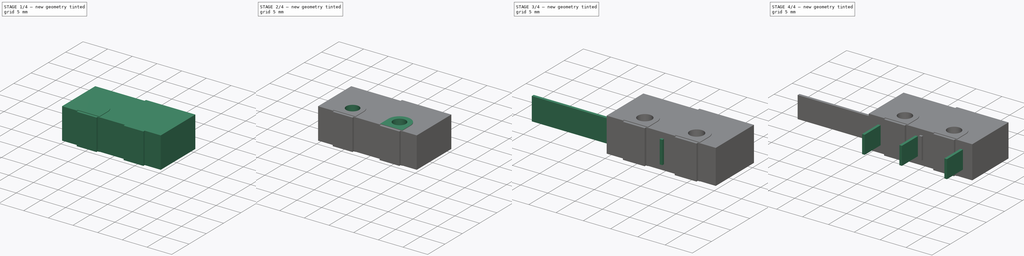
[diagram: build sequence overview — one tinted view per stage of 4, left to right]
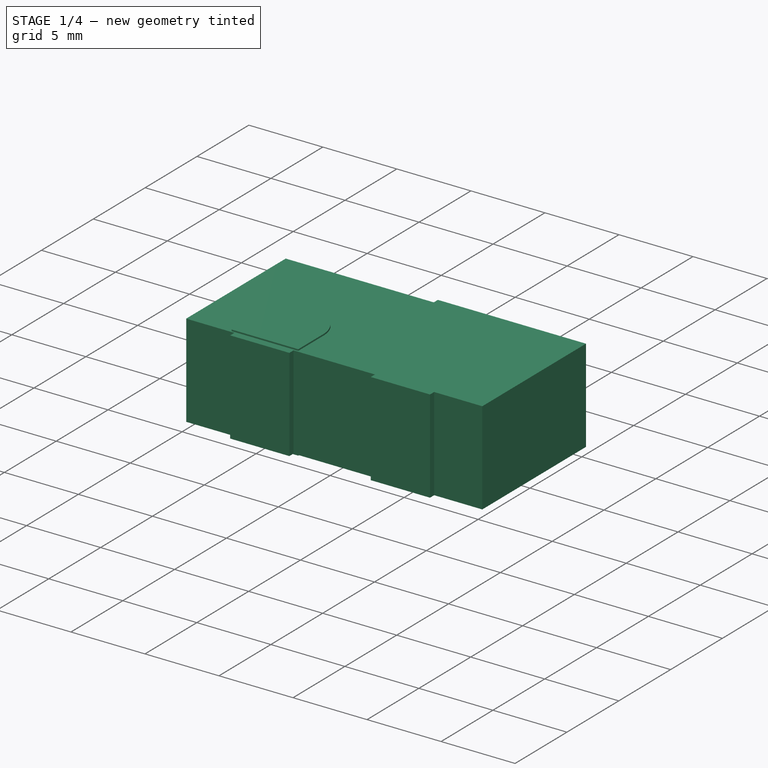
[diagram: stage 1 of 4 — iso view after this stage's code; geometry added in this stage tinted green]
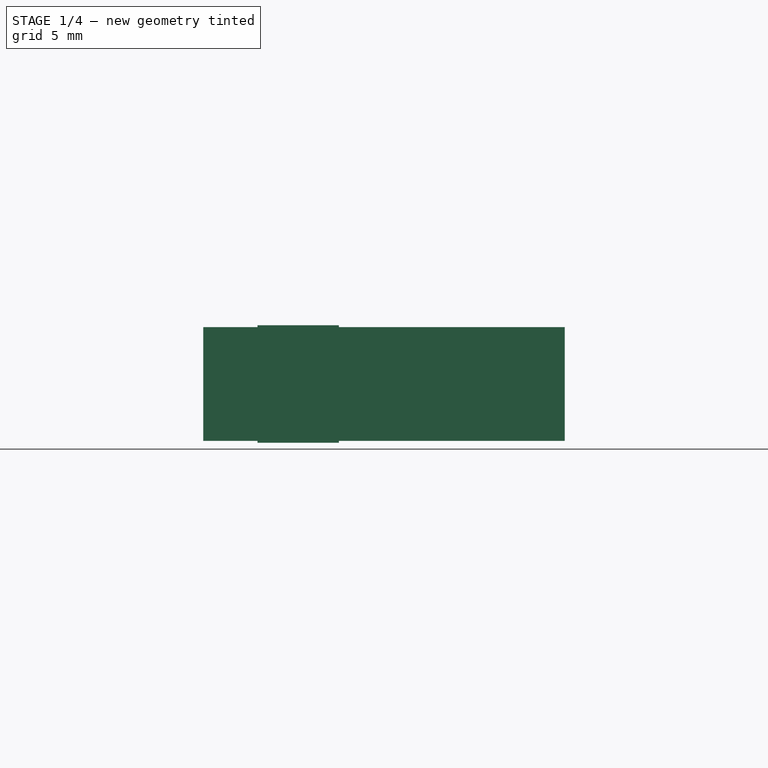
[diagram: stage 1 of 4 — front view after this stage's code; geometry added in this stage tinted green]
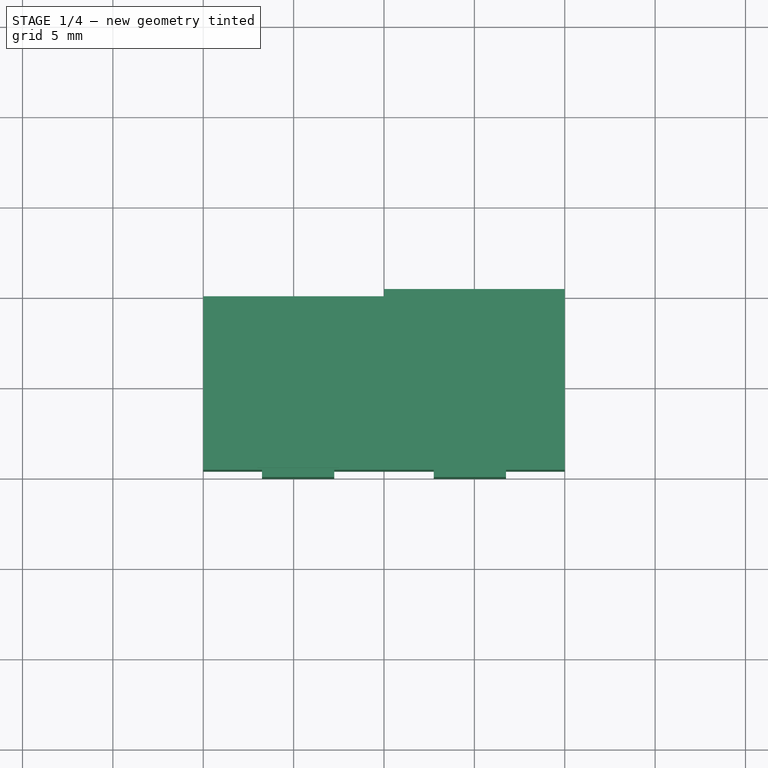
[diagram: stage 1 of 4 — top view after this stage's code; geometry added in this stage tinted green]
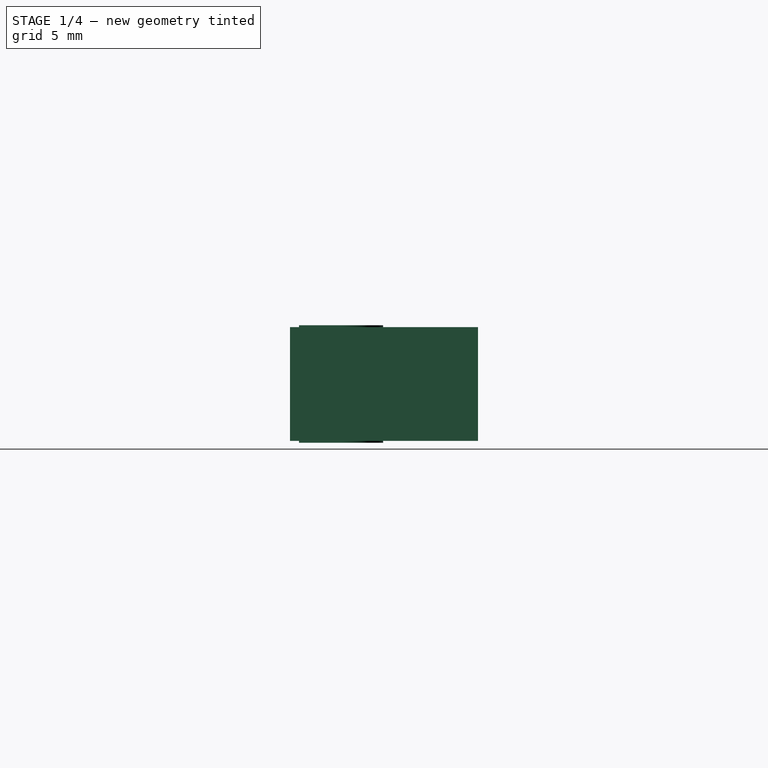
[diagram: stage 1 of 4 — right view after this stage's code; geometry added in this stage tinted green]
FCSTD DOCUMENT  (FreeCAD 1.0R39109 (Git))
Label: KW-12
License: All rights reserved
LicenseURL: http://en.wikipedia.org/wiki/All_rights_reserved
objects: Sketcher::SketchObject×6, PartDesign::Body×6, PartDesign::Pad×5, PartDesign::Mirrored×2, PartDesign::FeatureBase×2, PartDesign::Pocket×1, App::Part×1
note: 44 computed .brp shape members not serialized (recipe doc carries the construction recipe); baked Part::Feature solids carry a one-line shape summary decoded from their .brp

FEATURE [Sketcher::SketchObject] Sketch
  ArcFitTolerance = 1e-06
  AttachmentSupport = -> [XY_Plane]
  FullyConstrained = true
  MakeInternals = false
  MapMode = 5
  sketch-geometry (16):
    g0: LineSegment StartX=10 StartY=0.4 StartZ=0 EndX=10 EndY=10.4 EndZ=0
    g1: LineSegment StartX=-10 StartY=10 StartZ=0 EndX=-10 EndY=0.4 EndZ=0
    g2: LineSegment StartX=10 StartY=10.4 StartZ=0 EndX=-1.2008e-12 EndY=10.4 EndZ=0
    g3: LineSegment StartX=-1.2011e-12 StartY=10.4 StartZ=0 EndX=-1.2011e-12 EndY=10 EndZ=0
    g4: LineSegment StartX=-1.2011e-12 StartY=10 StartZ=0 EndX=-10 EndY=10 EndZ=0
    g5: LineSegment StartX=-10 StartY=0.4 StartZ=0 EndX=-6.75 EndY=0.4 EndZ=0
    g6: LineSegment StartX=-6.75 StartY=0.4 StartZ=0 EndX=-6.75 EndY=1.2024e-12 EndZ=0
    g7: LineSegment StartX=-6.75 StartY=1.2024e-12 StartZ=0 EndX=-2.75 EndY=1.2024e-12 EndZ=0
    g8: LineSegment StartX=-2.75 StartY=1.2024e-12 StartZ=0 EndX=-2.75 EndY=0.4 EndZ=0
    g9: LineSegment StartX=-2.75 StartY=0.4 StartZ=0 EndX=2.75 EndY=0.4 EndZ=0
    g10: LineSegment StartX=2.75 StartY=0.4 StartZ=0 EndX=2.75 EndY=-1.2024e-12 EndZ=0
    g11: LineSegment StartX=2.75 StartY=-1.2024e-12 StartZ=0 EndX=6.75 EndY=-1.2024e-12 EndZ=0
    g12: LineSegment StartX=6.75 StartY=-1.2024e-12 StartZ=0 EndX=6.75 EndY=0.4 EndZ=0
    g13: LineSegment StartX=6.75 StartY=0.4 StartZ=0 EndX=10 EndY=0.4 EndZ=0
    g14: GeomPoint X=-4.75 Y=1.2024e-12 Z=0
    g15: GeomPoint X=-4.75 Y=2.9 Z=0
  constraints (44):
    c: Vertical(g0)
    c: Vertical(g1)
    c: Coincident(g2,g0)
    c: Horizontal(g2)
    c: Coincident(g3,g2)
    c: Vertical(g3)
    c: Coincident(g4,g1)
    c: Horizontal(g4)
    c: Coincident(g3,g4)
    c: DistanceX(g2,g2) = 10
    c: Coincident(g5,g1)
    c: Coincident(g5,g6)
    c: Coincident(g6,g7)
    c: Horizontal(g7)
    c: Coincident(g7,g8)
    c: Vertical(g8)
    c: Coincident(g8,g9)
    c: Coincident(g9,g10)
    c: Vertical(g10)
    c: Coincident(g10,g11)
    c: Horizontal(g11)
    c: Coincident(g11,g12)
    c: Vertical(g12)
    c: Coincident(g12,g13)
    c: Coincident(g13,g0)
    c: Horizontal(g13)
    c: Equal(g11,g7)
    c: Vertical(g6)
    c: DistanceX(g7,g7) = 4
    c: Equal(g10,g8)
    c: Horizontal(g5)
    c: DistanceY(g1,g1) = 9.6
    c: Horizontal(g9)
    c: Horizontal(g9,g12)
    c: Horizontal(g5,g8)
    c: DistanceX(g1,g0) = 20
    c: Equal(g5,g13)
    c: Symmetric(g7,g10,g-1)
    c: Symmetric(g7,g6,g14)
    c: DistanceX(g14,g-1) = 4.75
    c: DistanceY(g-1,g0) = 10.4
    c: DistanceY(g-1,g15) = 2.9
    c: DistanceX(g15,g-1) = 4.75
    c: DistanceY(g5,g15) = 2.5
FEATURE [PartDesign::Pad] Pad
  Direction = (0,0,1)
  Length = 6.3
  Length2 = 10
  Midplane = true
  Profile = -> Sketch
  ReferenceAxis = -> Sketch [N_Axis]
  Refine = true
  Suppressed = false
  Type = 0
FEATURE [Sketcher::SketchObject] Sketch001
  ArcFitTolerance = 1e-06
  AttachmentSupport = -> [XY_Plane]
  FullyConstrained = true
  MakeInternals = false
  MapMode = 5
  sketch-geometry (4):
    g0: LineSegment StartX=-2.5 StartY=2.9 StartZ=0 EndX=-2.5 EndY=0.5 EndZ=0
    g1: LineSegment StartX=-2.5 StartY=0.5 StartZ=0 EndX=-7 EndY=0.5 EndZ=0
    g2: LineSegment StartX=-7 StartY=0.5 StartZ=0 EndX=-7 EndY=2.9 EndZ=0
    g3: ArcOfCircle CenterX=-4.75 CenterY=2.9 CenterZ=0 NormalX=0 NormalY=0 NormalZ=1 AngleXU=0 Radius=2.25 StartAngle=8.70301e-11 EndAngle=3.14159
  constraints (12):
    c: Coincident(g0,g1)
    c: Horizontal(g1)
    c: Coincident(g1,g2)
    c: Vertical(g2)
    c: Tangent(g2,g3) = 1.5708
    c: Coincident(g3,g0)
    c: Vertical(g0)
    c: Horizontal(g0,g2)
    c: Radius(g3) = 2.25
    c: DistanceX(g3,g-1) = 4.75
    c: DistanceY(g-1,g0) = 0.5
    c: DistanceY(g-1,g2) = 2.9
FEATURE [PartDesign::Pad] Pad001
  BaseFeature = -> Pad
  Direction = (0,0,1)
  Length = 6.5
  Length2 = 10
  Midplane = true
  Profile = -> Sketch001
  ReferenceAxis = -> Sketch001 [N_Axis]
  Refine = true
  Suppressed = false
  Type = 0
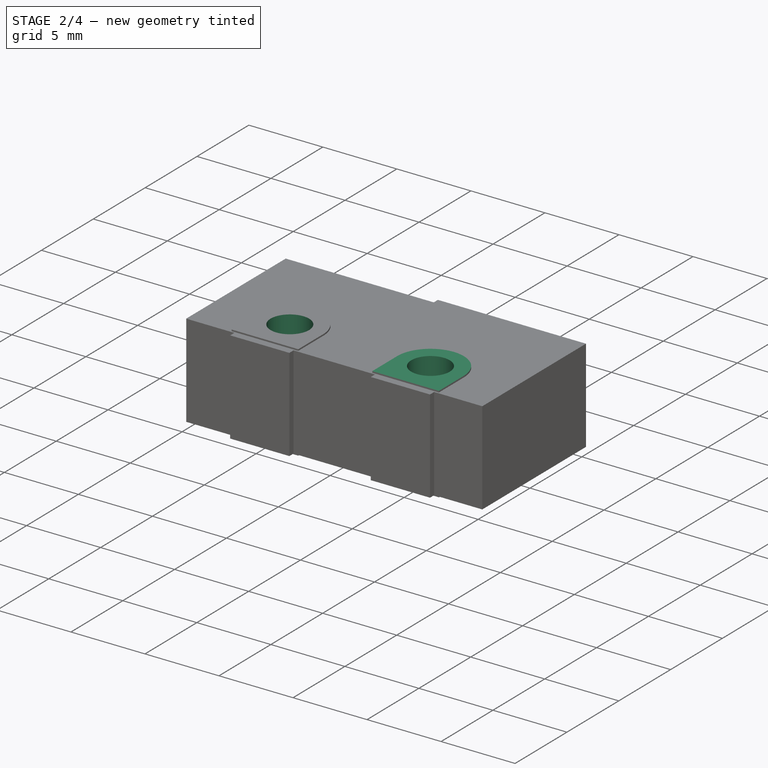
[diagram: stage 2 of 4 — iso view after this stage's code; geometry added in this stage tinted green]
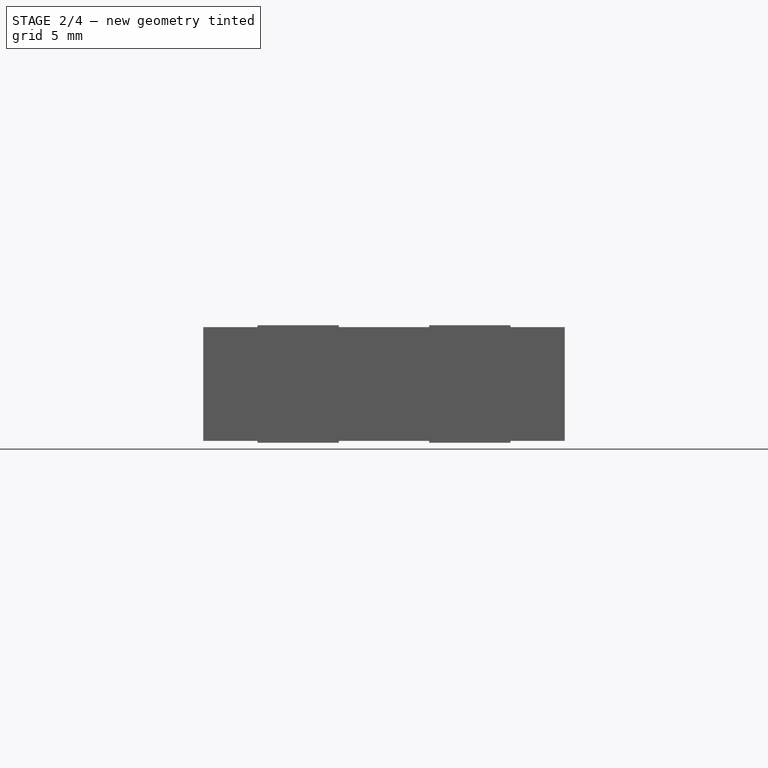
[diagram: stage 2 of 4 — front view after this stage's code; geometry added in this stage tinted green]
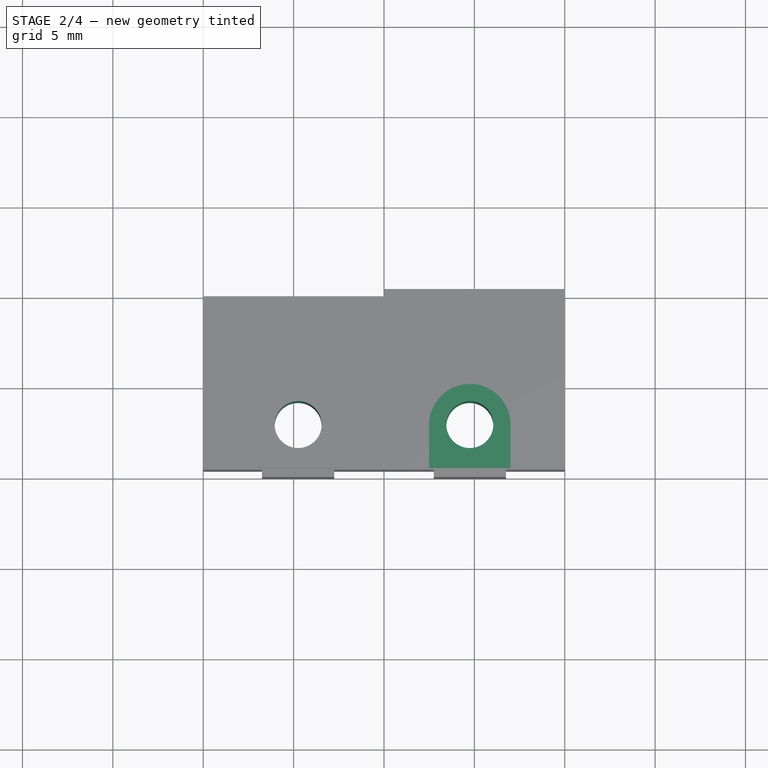
[diagram: stage 2 of 4 — top view after this stage's code; geometry added in this stage tinted green]
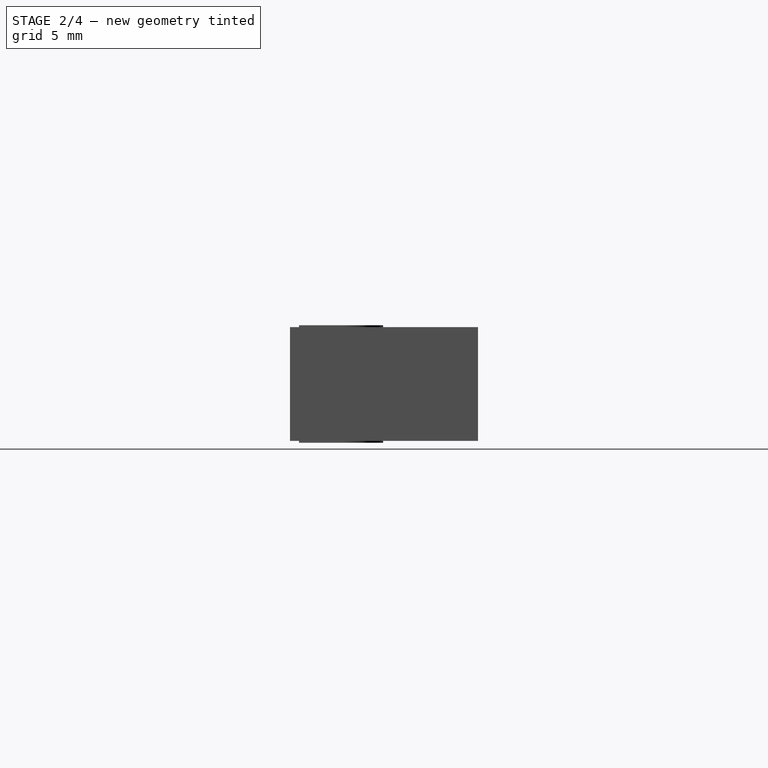
[diagram: stage 2 of 4 — right view after this stage's code; geometry added in this stage tinted green]
FEATURE [PartDesign::Mirrored] Mirrored
  BaseFeature = -> Pad001
  MirrorPlane = -> Sketch001 [V_Axis]
  Originals = -> [Pad001]
  Refine = true
  Suppressed = false
  TransformMode = 0
FEATURE [Sketcher::SketchObject] Sketch002
  ArcFitTolerance = 1e-06
  AttachmentSupport = -> [XY_Plane]
  FullyConstrained = true
  MakeInternals = false
  MapMode = 5
  sketch-geometry (1):
    g0: Circle CenterX=-4.75 CenterY=2.9 CenterZ=0 NormalX=0 NormalY=0 NormalZ=1 AngleXU=0 Radius=1.3
  constraints (3):
    c: DistanceY(g-1,g0) = 2.9
    c: DistanceX(g0,g-1) = 4.75
    c: Diameter(g0) = 2.6
FEATURE [PartDesign::Pocket] Pocket
  BaseFeature = -> Mirrored
  Direction = (0,0,-1)
  Length = 5
  Length2 = 5
  Midplane = true
  Profile = -> Sketch002
  ReferenceAxis = -> Sketch002 [N_Axis]
  Refine = true
  Suppressed = false
  Type = 1
FEATURE [PartDesign::Body] Body005  label="SwitchLever25mm-Depressed"
  AllowCompound = false
  Group = -> [Clone001]
  Origin = -> Origin006
  Placement = pos=(6.5,9.5,0) rot=(0,0,-1;6.2221rad)
  Tip = -> Clone001
FEATURE [PartDesign::Mirrored] Mirrored001
  BaseFeature = -> Pocket
  MirrorPlane = -> Sketch002 [V_Axis]
  Originals = -> [Pocket]
  Refine = true
  Suppressed = false
  TransformMode = 0
FEATURE [PartDesign::Body] Body  label="Housing"
  AllowCompound = false
  Group = -> [Sketch,Pad,Sketch001,Pad001,Mirrored,Sketch002,Pocket,Mirrored001]
  Origin = -> Origin
  Tip = -> Mirrored001
FEATURE [App::Part] Part  label="KW-12-25mm"
  Group = -> [Body,Body001,Body002,Body003,Body004,Body005]
  Origin = -> Origin002
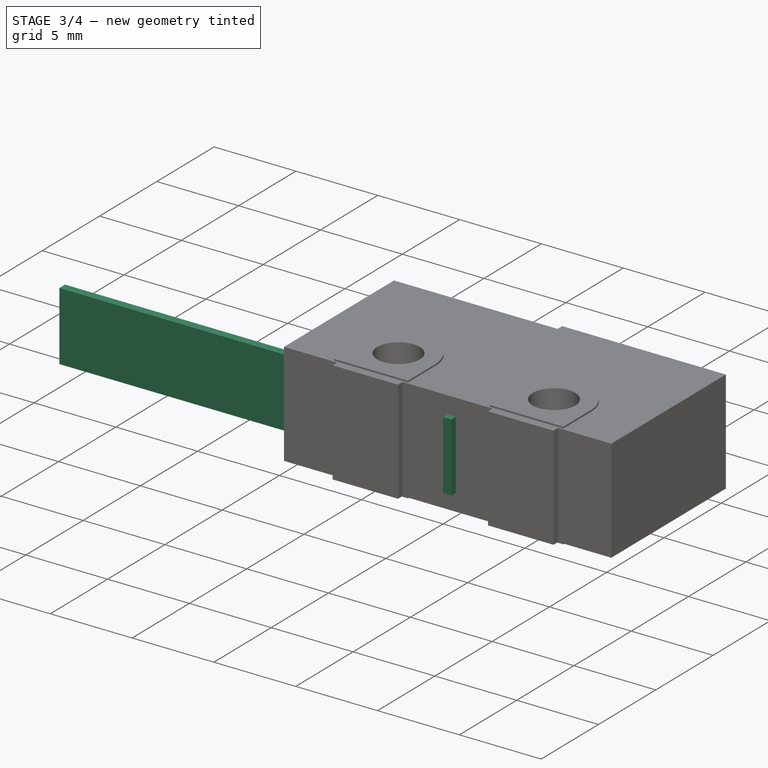
[diagram: stage 3 of 4 — iso view after this stage's code; geometry added in this stage tinted green]
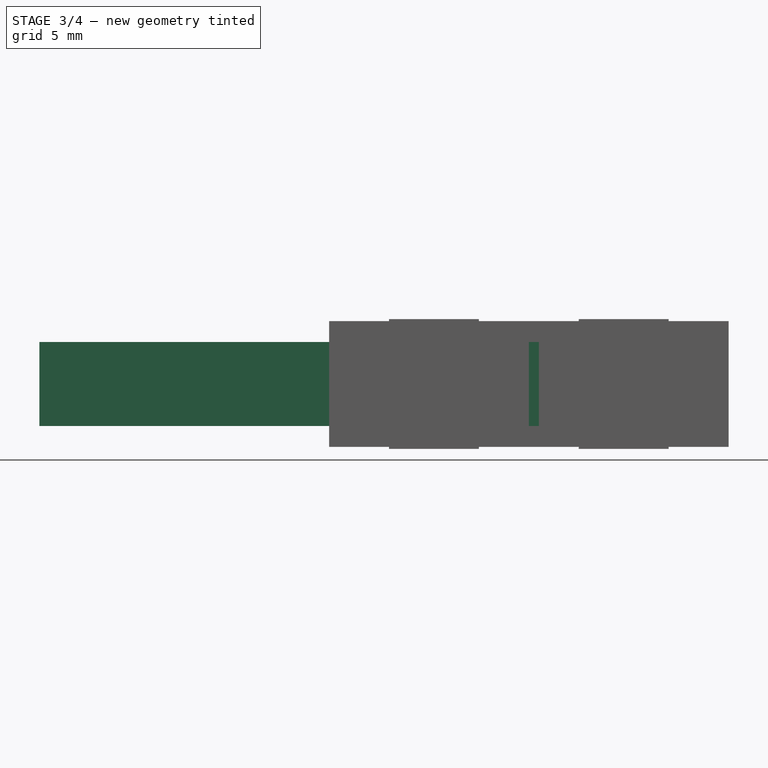
[diagram: stage 3 of 4 — front view after this stage's code; geometry added in this stage tinted green]
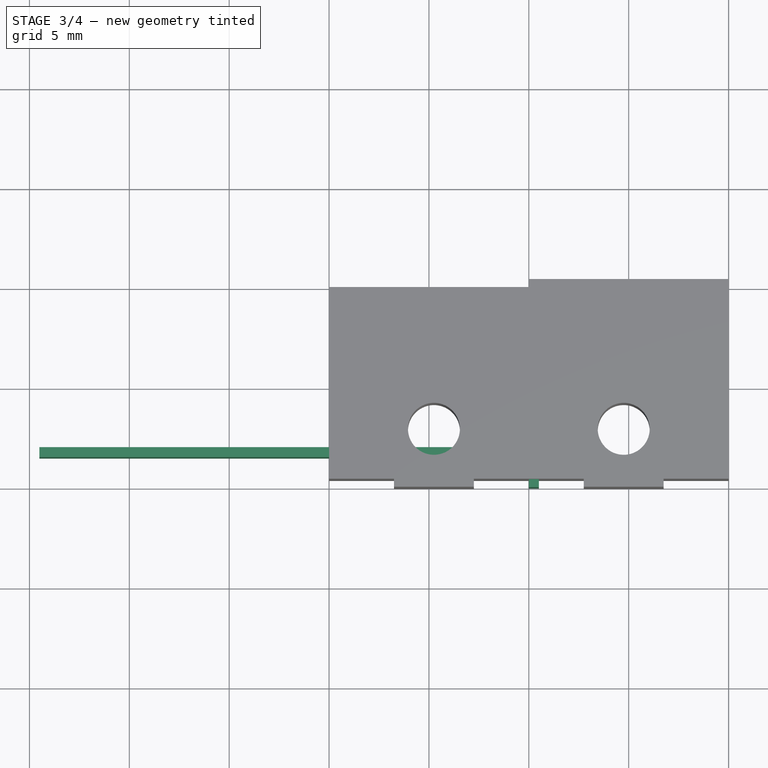
[diagram: stage 3 of 4 — top view after this stage's code; geometry added in this stage tinted green]
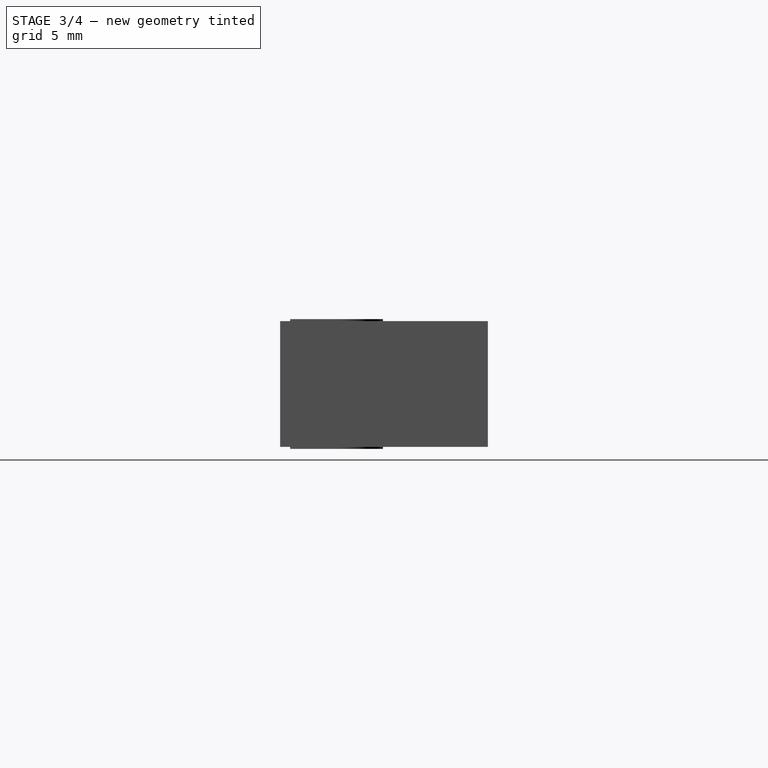
[diagram: stage 3 of 4 — right view after this stage's code; geometry added in this stage tinted green]
FEATURE [PartDesign::Body] Body002  label="Legs"
  AllowCompound = false
  Group = -> [Sketch004,Pad003]
  Origin = -> Origin003
  Tip = -> Pad003
FEATURE [Sketcher::SketchObject] Sketch005
  ArcFitTolerance = 1e-06
  AttachmentSupport = -> [XY_Plane004]
  FullyConstrained = true
  MakeInternals = false
  MapMode = 5
  sketch-geometry (6):
    g0: LineSegment StartX=0 StartY=0 StartZ=0 EndX=0 EndY=1.5 EndZ=0
    g1: LineSegment StartX=0 StartY=1.5 StartZ=0 EndX=-24.5 EndY=1.5 EndZ=0
    g2: LineSegment StartX=-24.5 StartY=1.5 StartZ=0 EndX=-24.5 EndY=2 EndZ=0
    g3: LineSegment StartX=-24.5 StartY=2 StartZ=0 EndX=0.5 EndY=2 EndZ=0
    g4: LineSegment StartX=0.5 StartY=2 StartZ=0 EndX=0.5 EndY=0 EndZ=0
    g5: LineSegment StartX=0.5 StartY=0 StartZ=0 EndX=0 EndY=0 EndZ=0
  constraints (17):
    c: Coincident(g-1,g0)
    c: PointOnObject(g0,g-2)
    c: Coincident(g0,g1)
    c: Horizontal(g1)
    c: Coincident(g1,g2)
    c: Coincident(g2,g3)
    c: Horizontal(g3)
    c: Coincident(g3,g4)
    c: PointOnObject(g4,g-1)
    c: Vertical(g4)
    c: Coincident(g4,g5)
    c: Coincident(g5,g0)
    c: Vertical(g2)
    c: DistanceY(g2,g2) = 0.5
    c: DistanceX(g3,g3) = 25
    c: DistanceX(g0,g3) = 0.5
    c: DistanceY(g4,g4) = 2
FEATURE [PartDesign::Pad] Pad004
  Direction = (0,0,1)
  Length = 4.2
  Length2 = 10
  Midplane = true
  Profile = -> Sketch005
  ReferenceAxis = -> Sketch005 [N_Axis]
  Refine = true
  Suppressed = false
  Type = 0
FEATURE [PartDesign::Body] Body003  label="SwitchLever25mm-Trigger"
  AllowCompound = false
  Group = -> [Sketch005,Pad004]
  Origin = -> Origin004
  Placement = pos=(6.5,9.5,0) rot=(0,0,1;0rad)
  Tip = -> Pad004
FEATURE [PartDesign::FeatureBase] Clone
  BaseFeature = -> Body003
  Suppressed = false
FEATURE [PartDesign::Body] Body004  label="SwitchLever25mm-Neutral"
  AllowCompound = false
  Group = -> [Clone]
  Origin = -> Origin005
  Placement = pos=(6.5,9.5,0) rot=(0,0,1;6.02139rad)
  Tip = -> Clone
FEATURE [PartDesign::FeatureBase] Clone001
  BaseFeature = -> Body003
  Suppressed = false
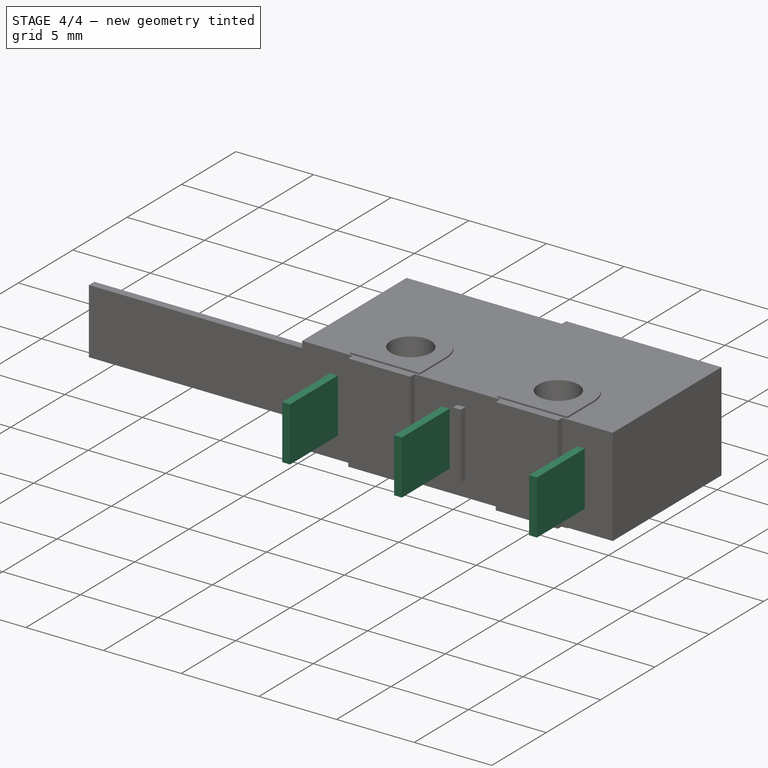
[diagram: stage 4 of 4 — iso view after this stage's code; geometry added in this stage tinted green]
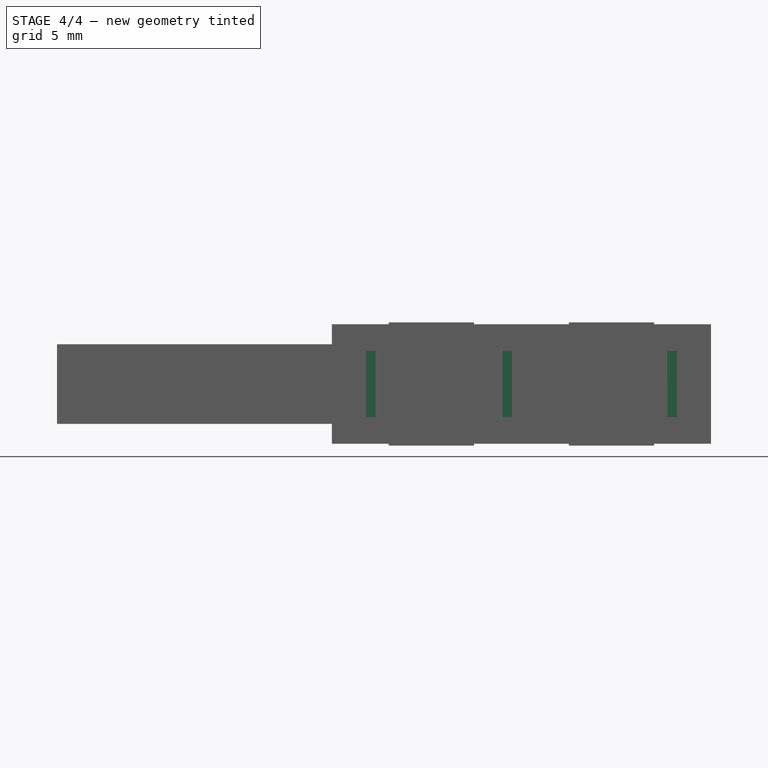
[diagram: stage 4 of 4 — front view after this stage's code; geometry added in this stage tinted green]
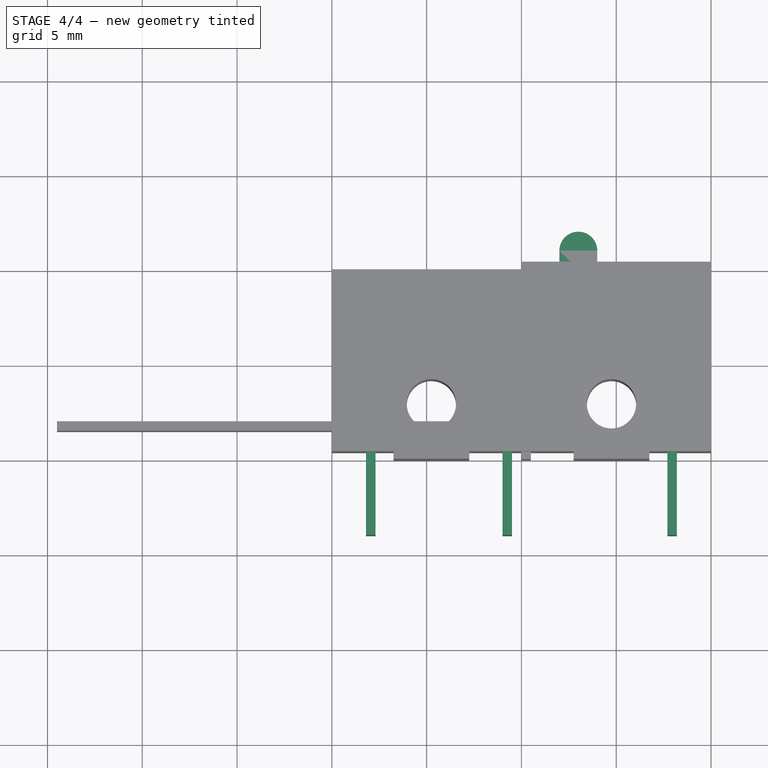
[diagram: stage 4 of 4 — top view after this stage's code; geometry added in this stage tinted green]
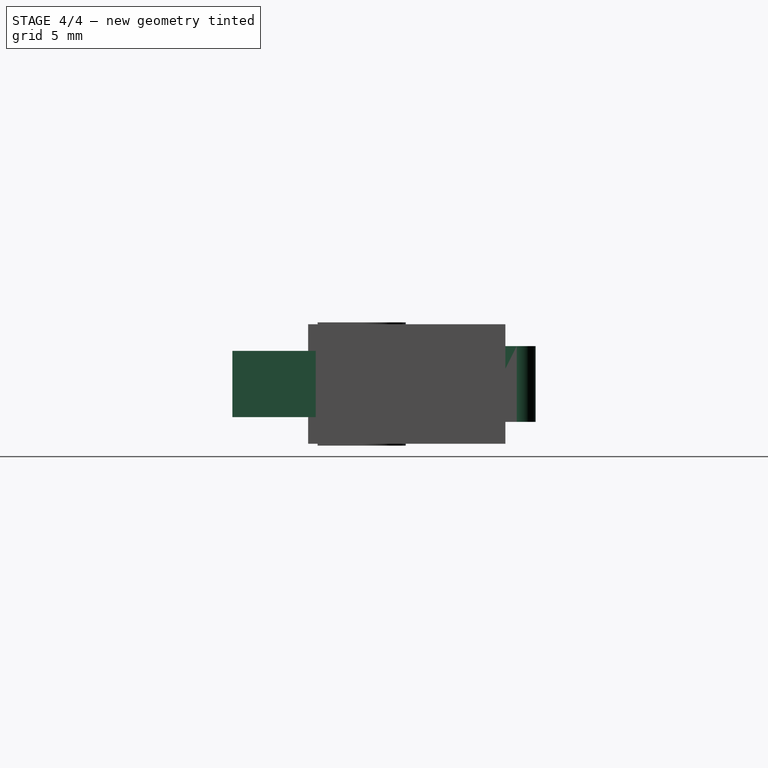
[diagram: stage 4 of 4 — right view after this stage's code; geometry added in this stage tinted green]
FEATURE [Sketcher::SketchObject] Sketch003
  ArcFitTolerance = 1e-06
  AttachmentSupport = -> [XY_Plane001]
  FullyConstrained = true
  MakeInternals = false
  MapMode = 5
  sketch-geometry (5):
    g0: LineSegment StartX=2 StartY=11 StartZ=0 EndX=2 EndY=9 EndZ=0
    g1: LineSegment StartX=2 StartY=9 StartZ=0 EndX=4 EndY=9 EndZ=0
    g2: LineSegment StartX=4 StartY=9 StartZ=0 EndX=4 EndY=11 EndZ=0
    g3: ArcOfCircle CenterX=3 CenterY=11 CenterZ=0 NormalX=0 NormalY=0 NormalZ=1 AngleXU=0 Radius=1 StartAngle=-3.8529e-12 EndAngle=3.14159
    g4: GeomPoint X=3 Y=12 Z=0
  constraints (13):
    c: Vertical(g0)
    c: Coincident(g0,g1)
    c: Horizontal(g1)
    c: Coincident(g1,g2)
    c: Vertical(g2)
    c: Tangent(g2,g3) = -1.5708
    c: DistanceX(g-1,g1) = 4
    c: DistanceX(g1,g1) = 2
    c: DistanceY(g0,g0) = 2
    c: Tangent(g3,g0) = -1.5708
    c: PointOnObject(g4,g3)
    c: Vertical(g4,g3)
    c: DistanceY(g-1,g4) = 12
FEATURE [PartDesign::Pad] Pad002
  Direction = (0,0,1)
  Length = 4
  Length2 = 10
  Midplane = true
  Profile = -> Sketch003
  ReferenceAxis = -> Sketch003 [N_Axis]
  Refine = true
  Suppressed = false
  Type = 0
FEATURE [PartDesign::Body] Body001  label="Toggle"
  AllowCompound = false
  Group = -> [Sketch003,Pad002]
  Origin = -> Origin001
  Tip = -> Pad002
FEATURE [Sketcher::SketchObject] Sketch004
  ArcFitTolerance = 1e-06
  AttachmentSupport = -> [XY_Plane003]
  FullyConstrained = true
  MakeInternals = false
  MapMode = 5
  sketch-geometry (15):
    g0: LineSegment StartX=-8.2 StartY=-4 StartZ=0 EndX=-7.7 EndY=-4 EndZ=0
    g1: LineSegment StartX=-7.7 StartY=-4 StartZ=0 EndX=-7.7 EndY=1 EndZ=0
    g2: LineSegment StartX=-8.2 StartY=1.5 StartZ=0 EndX=-8.2 EndY=-4 EndZ=0
    g3: LineSegment StartX=-1 StartY=-4 StartZ=0 EndX=-0.5 EndY=-4 EndZ=0
    g4: LineSegment StartX=-0.5 StartY=-4 StartZ=0 EndX=-0.5 EndY=1 EndZ=0
    g5: LineSegment StartX=-1 StartY=1 StartZ=0 EndX=-1 EndY=-4 EndZ=0
    g6: LineSegment StartX=7.7 StartY=-4 StartZ=0 EndX=8.2 EndY=-4 EndZ=0
    g7: LineSegment StartX=8.2 StartY=-4 StartZ=0 EndX=8.2 EndY=1.5 EndZ=0
    g8: LineSegment StartX=7.7 StartY=1 StartZ=0 EndX=7.7 EndY=-4 EndZ=0
    g9: GeomPoint X=-7.95 Y=-4 Z=0
    g10: GeomPoint X=-0.75 Y=-4 Z=0
    g11: GeomPoint X=7.95 Y=-4 Z=0
    g12: LineSegment StartX=-0.5 StartY=1 StartZ=0 EndX=7.7 EndY=1 EndZ=0
    g13: LineSegment StartX=-7.7 StartY=1 StartZ=0 EndX=-1 EndY=1 EndZ=0
    g14: LineSegment StartX=-8.2 StartY=1.5 StartZ=0 EndX=8.2 EndY=1.5 EndZ=0
  constraints (38):
    c: Coincident(g0,g1)
    c: Coincident(g2,g0)
    c: Horizontal(g0)
    c: Vertical(g1)
    c: Vertical(g2)
    c: Coincident(g3,g4)
    c: Coincident(g5,g3)
    c: Horizontal(g3)
    c: Vertical(g4)
    c: Vertical(g5)
    c: Coincident(g6,g7)
    c: Coincident(g8,g6)
    c: Horizontal(g6)
    c: Vertical(g7)
    c: Vertical(g8)
    c: Horizontal(g6,g3)
    c: Equal(g0,g3)
    c: Equal(g3,g6)
    c: DistanceX(g6,g6) = 0.5
    c: Symmetric(g0,g0,g9)
    c: Symmetric(g3,g3,g10)
    c: Symmetric(g6,g6,g11)
    c: DistanceX(g10,g11) = 8.7
    c: DistanceX(g9,g10) = 7.2
    c: Symmetric(g9,g11,g-2)
    c: Coincident(g12,g4)
    c: Coincident(g12,g8)
    c: Horizontal(g12)
    c: Coincident(g13,g1)
    c: Coincident(g13,g5)
    c: Horizontal(g13)
    c: Coincident(g14,g2)
    c: Coincident(g14,g7)
    c: Horizontal(g14)
    c: Horizontal(g5,g4)
    c: DistanceY(g-1,g8) = 1
    c: DistanceY(g8,g7) = 0.5
    c: DistanceY(g0,g-1) = 4
FEATURE [PartDesign::Pad] Pad003
  Direction = (0,0,1)
  Length = 3.5
  Length2 = 10
  Midplane = true
  Profile = -> Sketch004
  ReferenceAxis = -> Sketch004 [N_Axis]
  Refine = true
  Suppressed = false
  Type = 0
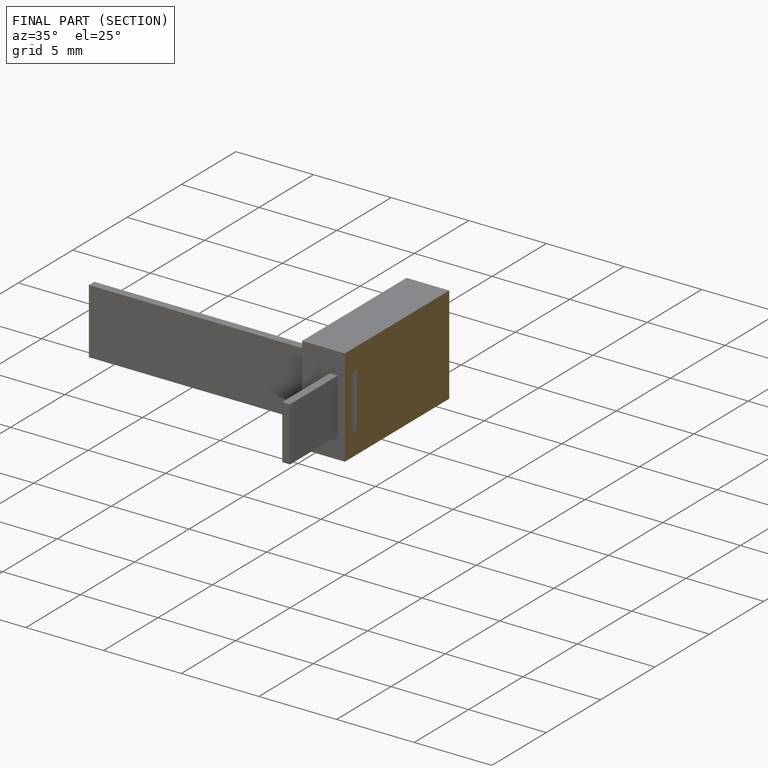
[diagram: finished part — half-section view (interior)]
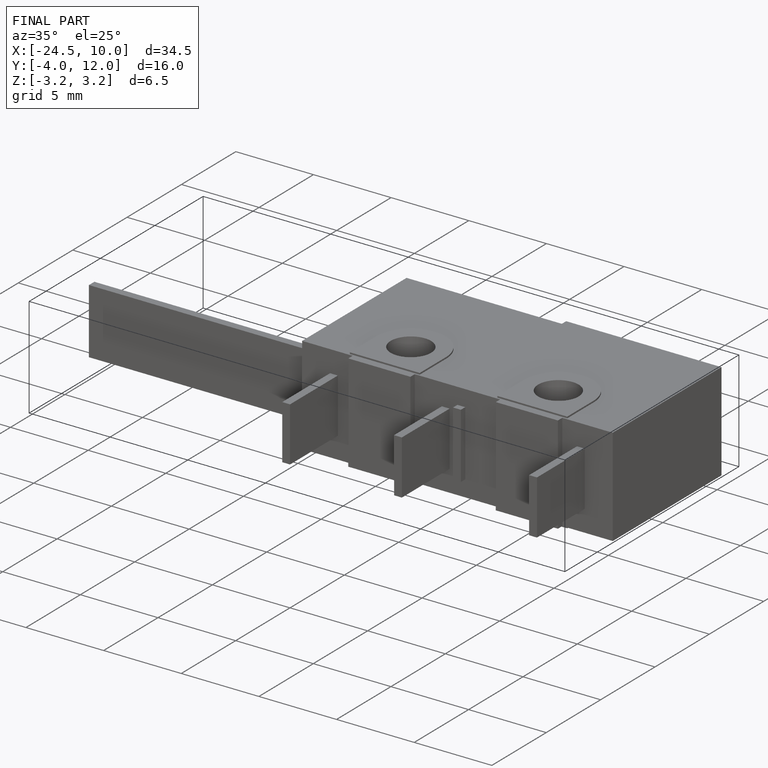
[diagram: finished part — iso view with bounding-box wireframe]
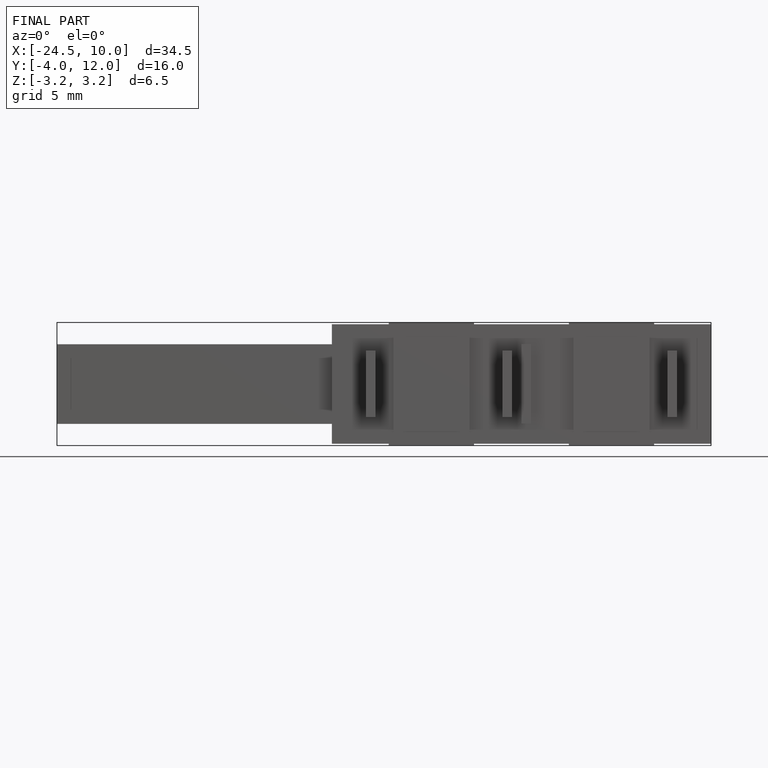
[diagram: finished part — front view with bounding-box wireframe]
